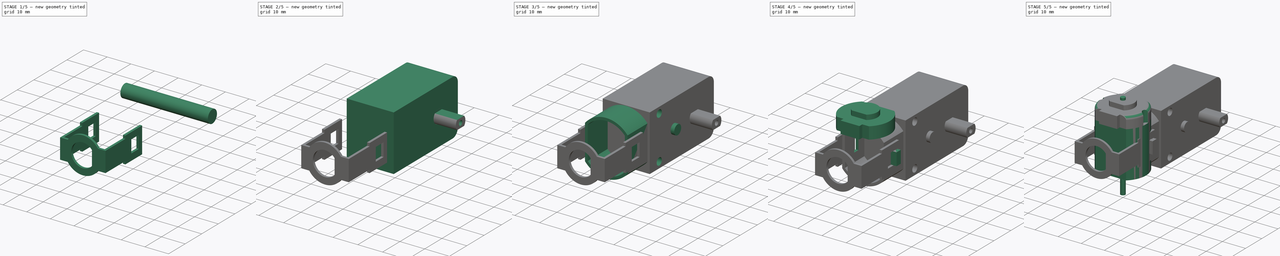
[diagram: build sequence overview — one tinted view per stage of 5, left to right]
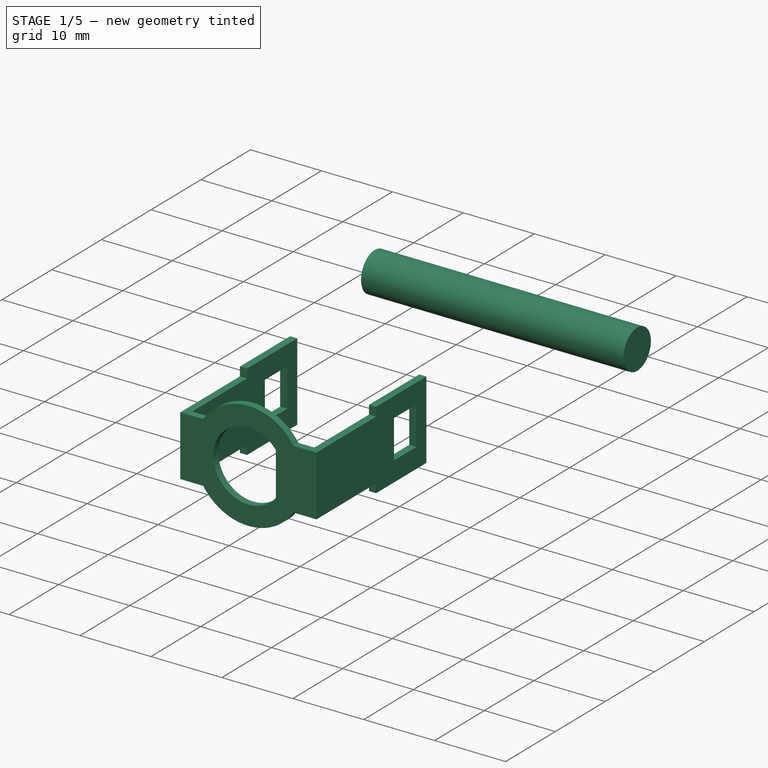
[diagram: stage 1 of 5 — iso view after this stage's code; geometry added in this stage tinted green]
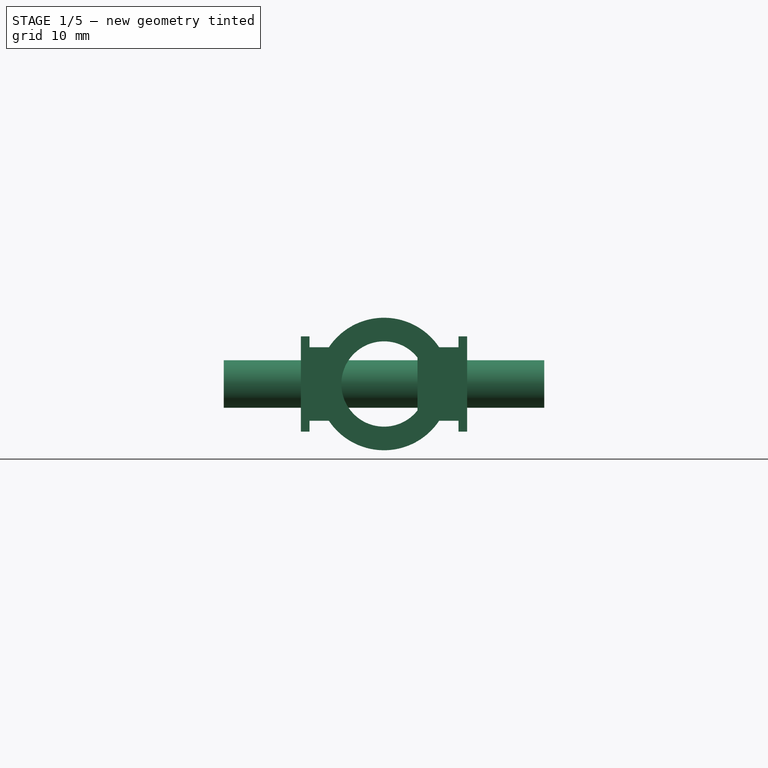
[diagram: stage 1 of 5 — front view after this stage's code; geometry added in this stage tinted green]
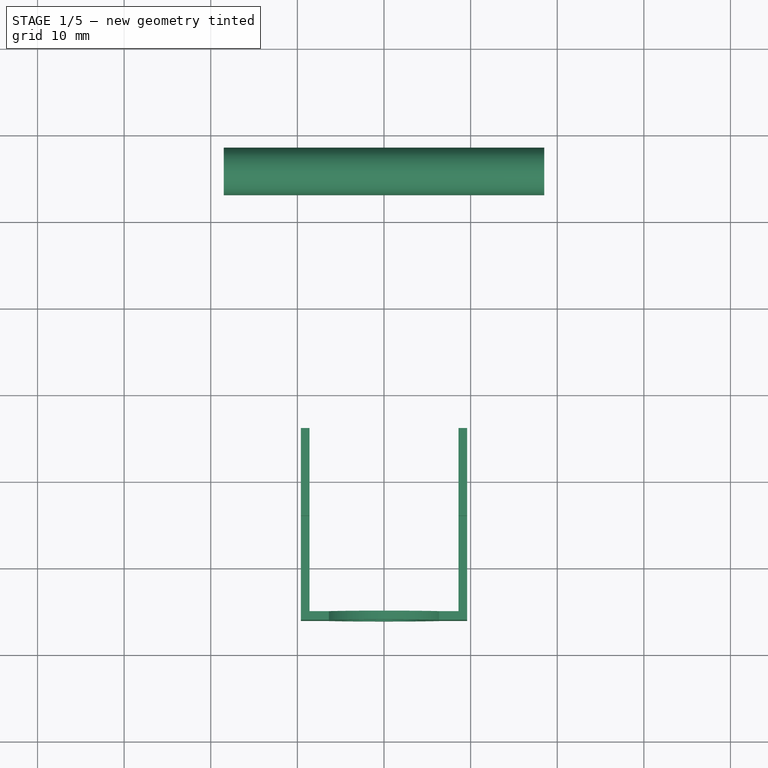
[diagram: stage 1 of 5 — top view after this stage's code; geometry added in this stage tinted green]
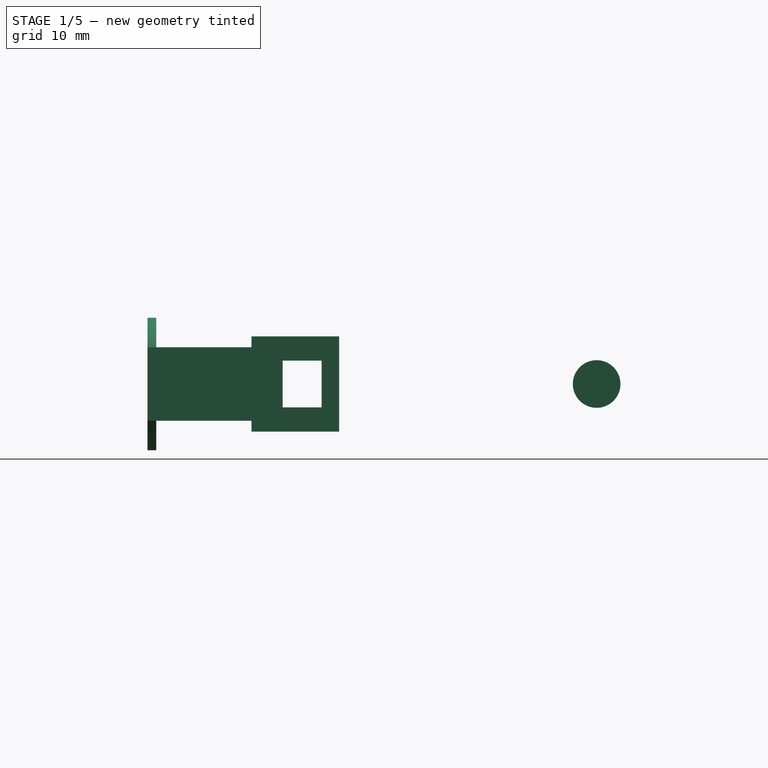
[diagram: stage 1 of 5 — right view after this stage's code; geometry added in this stage tinted green]
FCSTD DOCUMENT  (FreeCAD 0.21R29865 (Git))
Label: Yellow_gearmotor_straight
License: Creative Commons Attribution-NonCommercial-ShareAlike
LicenseURL: http://creativecommons.org/licenses/by-nc-sa/4.0/
objects: Sketcher::SketchObject×18, PartDesign::Pad×11, PartDesign::Pocket×7, PartDesign::Body×6, PartDesign::Fillet×2, App::DocumentObjectGroup×2, PartDesign::Mirrored×2, App::Part×1
note: 66 computed .brp shape members not serialized (recipe doc carries the construction recipe); baked Part::Feature solids carry a one-line shape summary decoded from their .brp

FEATURE [PartDesign::Body] Body003  label="Yellow"
  Group = -> [Sketch005,Pad004,Sketch006,Pad005,Fillet001,Sketch007,Pocket001,Sketch008,Pocket002,Sketch009,Pad006,Sketch010,Pad007,Sketch011,Pocket003,Sketch012,Pad008,Mirrored]
  Origin = -> Origin004
  Tip = -> Mirrored
FEATURE [Sketcher::SketchObject] Sketch013
  FullyConstrained = true
  MapMode = 5
  Placement = pos=(0,0,0) rot=(0.57735,0.57735,0.57735;2.0944rad)
  Support = -> [YZ_Plane005]
  sketch-geometry (1):
    g0: Circle CenterX=35.75 CenterY=0 CenterZ=0 NormalX=0 NormalY=0 NormalZ=1 AngleXU=0 Radius=2.75
  constraints (3):
    c: PointOnObject(g0,g-1)
    c: DistanceX(g0) = 35.75
    c: Diameter(g0) = 5.5
FEATURE [PartDesign::Pad] Pad009
  Direction = (1,-2e-16,3e-16)
  Length = 37
  Length2 = 10
  Midplane = true
  Placement = pos=(0,0,0) rot=(0.57735,0.57735,0.57735;2.0944rad)
  Profile = -> Sketch013
  ReferenceAxis = -> Sketch013 [N_Axis]
  Type = 0
FEATURE [PartDesign::Body] Body004  label="White"
  Group = -> [Sketch013,Pad009,Sketch014,Pocket004,Mirrored001]
  Origin = -> Origin005
  Tip = -> Mirrored001
FEATURE [Sketcher::SketchObject] Sketch015
  FullyConstrained = false
  MapMode = 5
  Support = -> [XY_Plane006]
  sketch-geometry (9):
    g0: LineSegment StartX=-9.6 StartY=-16.1 StartZ=0 EndX=9.6 EndY=-16.1 EndZ=0
    g1: LineSegment StartX=9.6 StartY=-16.1 StartZ=0 EndX=9.6 EndY=6.02093 EndZ=0
    g2: LineSegment StartX=9.6 StartY=6.02093 StartZ=0 EndX=8.6 EndY=6.02093 EndZ=0
    g3: LineSegment StartX=8.6 StartY=6.02093 StartZ=0 EndX=8.6 EndY=-15.1 EndZ=0
    g4: LineSegment StartX=8.6 StartY=-15.1 StartZ=0 EndX=-8.6 EndY=-15.1 EndZ=0
    g5: LineSegment StartX=-8.6 StartY=-15.1 StartZ=0 EndX=-8.6 EndY=6.02093 EndZ=0
    g6: LineSegment StartX=-8.6 StartY=6.02093 StartZ=0 EndX=-9.6 EndY=6.02093 EndZ=0
    g7: LineSegment StartX=-9.6 StartY=6.02093 StartZ=0 EndX=-9.6 EndY=-16.1 EndZ=0
    g8: LineSegment StartX=8.6 StartY=-15.1 StartZ=0 EndX=8.6 EndY=-16.1 EndZ=0
  constraints (25):
    c: Coincident(g0,g1)
    c: Vertical(g1)
    c: Coincident(g1,g2)
    c: Coincident(g2,g3)
    c: Vertical(g3)
    c: Coincident(g3,g4)
    c: Horizontal(g4)
    c: Coincident(g4,g5)
    c: Vertical(g5)
    c: Coincident(g5,g6)
    c: Coincident(g6,g7)
    c: Coincident(g7,g0)
    c: Vertical(g7)
    c: Horizontal(g2)
    c: Horizontal(g6)
    c: Equal(g6,g2)
    c: Symmetric(g0,g0,g-2)
    c: DistanceX(g6,g6) = 1
    c: DistanceX(g2) = 8.6
    c: DistanceY(g3) = -15.1
    c: Coincident(g8,g3)
    c: PointOnObject(g8,g0)
    c: Vertical(g8)
    c: Equal(g8,g2)
    c: Horizontal(g1,g6)
FEATURE [PartDesign::Pad] Pad010
  Direction = (0,0,1)
  Length = 15.3
  Length2 = 10
  Midplane = true
  Profile = -> Sketch015
  ReferenceAxis = -> Sketch015 [N_Axis]
  Type = 0
FEATURE [Sketcher::SketchObject] Sketch016
  ExternalGeometry = -> [Pad010]
  FullyConstrained = false
  MapMode = 5
  Placement = pos=(3e-15,-16.1,0) rot=(1,0,0;1.5708rad)
  Support = -> [Pad010]
  sketch-geometry (15):
    g0: ArcOfCircle CenterX=0 CenterY=0 CenterZ=0 NormalX=0 NormalY=0 NormalZ=1 AngleXU=0 Radius=4.925 StartAngle=0.665186 EndAngle=5.618
    g1: LineSegment StartX=3.875 StartY=-3.03974 StartZ=0 EndX=3.875 EndY=3.03974 EndZ=0
    g2: GeomPoint X=-4.925 Y=0 Z=0
    g3: ArcOfCircle CenterX=0 CenterY=0 CenterZ=0 NormalX=0 NormalY=0 NormalZ=1 AngleXU=0 Radius=7.65 StartAngle=3.73062 EndAngle=5.69415
    g4: LineSegment StartX=6.36082 StartY=-4.25 StartZ=0 EndX=9.6 EndY=-4.25 EndZ=0
    g5: LineSegment StartX=9.6 StartY=-4.25 StartZ=0 EndX=9.6 EndY=4.25 EndZ=0
    g6: LineSegment StartX=9.6 StartY=4.25 StartZ=0 EndX=6.36082 EndY=4.25 EndZ=0
    g7: LineSegment StartX=-6.36082 StartY=4.25 StartZ=0 EndX=-9.6 EndY=4.25 EndZ=0
    g8: LineSegment StartX=-9.6 StartY=4.25 StartZ=0 EndX=-9.6 EndY=-4.25 EndZ=0
    g9: LineSegment StartX=-9.6 StartY=-4.25 StartZ=0 EndX=-6.36082 EndY=-4.25 EndZ=0
    g10: ArcOfCircle CenterX=0 CenterY=0 CenterZ=0 NormalX=0 NormalY=0 NormalZ=1 AngleXU=0 Radius=7.65 StartAngle=0.589031 EndAngle=2.55256
    g11: LineSegment StartX=-11.0569 StartY=9.10145 StartZ=0 EndX=11.1499 EndY=9.10145 EndZ=0
    g12: LineSegment StartX=11.1499 StartY=9.10145 StartZ=0 EndX=11.1499 EndY=-8.85112 EndZ=0
    g13: LineSegment StartX=11.1499 StartY=-8.85112 StartZ=0 EndX=-11.0569 EndY=-8.85112 EndZ=0
    g14: LineSegment StartX=-11.0569 StartY=-8.85112 StartZ=0 EndX=-11.0569 EndY=9.10145 EndZ=0
  constraints (39):
    c: Coincident(g0,g-1)
    c: Diameter(g0) = 9.85
    c: Vertical(g1)
    c: PointOnObject(g2,g0)
    c: PointOnObject(g2,g-1)
    c: DistanceX(g2,g1) = 8.8
    c: Coincident(g0,g1)
    c: Coincident(g0,g1)
    c: Coincident(g3,g0)
    c: Horizontal(g4)
    c: Coincident(g4,g5)
    c: Coincident(g5,g6)
    c: Horizontal(g6)
    c: Symmetric(g4,g5,g-1)
    c: DistanceY(g4,g5) = 8.5
    c: Horizontal(g7)
    c: Coincident(g7,g8)
    c: Coincident(g8,g9)
    c: Horizontal(g9)
    c: Horizontal(g7,g5)
    c: Horizontal(g4,g9)
    c: Coincident(g10,g7)
    c: Coincident(g3,g9)
    c: Equal(g3,g10)
    c: Coincident(g3,g4)
    c: Coincident(g10,g6)
    c: Coincident(g3,g10)
    c: PointOnObject(g7,g-3)
    c: Vertical(g8)
    c: PointOnObject(g5,g-4)
    c: Radius(g10) = 7.65
    c: Coincident(g11,g12)
    c: Coincident(g12,g13)
    c: Coincident(g13,g14)
    c: Coincident(g14,g11)
    c: Horizontal(g11)
    c: Horizontal(g13)
    c: Vertical(g12)
    c: Vertical(g14)
FEATURE [PartDesign::Pocket] Pocket005
  BaseFeature = -> Pad010
  Direction = (-2e-16,1,-2e-16)
  Length = 12
  Length2 = 5
  Profile = -> Sketch016
  ReferenceAxis = -> Sketch016 [N_Axis]
  Type = 0
FEATURE [Sketcher::SketchObject] Sketch017
  ExternalGeometry = -> [Pocket005]
  FullyConstrained = true
  MapMode = 5
  Placement = pos=(9.6,0,0) rot=(0.57735,0.57735,0.57735;2.0944rad)
  Support = -> [Pocket005]
  sketch-geometry (13):
    g0: LineSegment StartX=-0.5 StartY=-2.7 StartZ=0 EndX=-0.5 EndY=2.7 EndZ=0
    g1: LineSegment StartX=-0.5 StartY=2.7 StartZ=0 EndX=4 EndY=2.7 EndZ=0
    g2: LineSegment StartX=4 StartY=2.7 StartZ=0 EndX=4 EndY=-2.7 EndZ=0
    g3: LineSegment StartX=4 StartY=-2.7 StartZ=0 EndX=-0.5 EndY=-2.7 EndZ=0
    g4: GeomPoint X=1.75 Y=0 Z=0
    g5: LineSegment StartX=6.02093 StartY=-7.65 StartZ=0 EndX=-4.1 EndY=-7.65 EndZ=0
    g6: LineSegment StartX=-4.1 StartY=-7.65 StartZ=0 EndX=-4.1 EndY=-5.5 EndZ=0
    g7: LineSegment StartX=-4.1 StartY=-5.5 StartZ=0 EndX=6.02093 EndY=-5.5 EndZ=0
    g8: LineSegment StartX=6.02093 StartY=-5.5 StartZ=0 EndX=6.02093 EndY=-7.65 EndZ=0
    g9: LineSegment StartX=-4.1 StartY=7.65 StartZ=0 EndX=6.02093 EndY=7.65 EndZ=0
    g10: LineSegment StartX=6.02093 StartY=7.65 StartZ=0 EndX=6.02093 EndY=5.5 EndZ=0
    g11: LineSegment StartX=6.02093 StartY=5.5 StartZ=0 EndX=-4.1 EndY=5.5 EndZ=0
    g12: LineSegment StartX=-4.1 StartY=5.5 StartZ=0 EndX=-4.1 EndY=7.65 EndZ=0
  constraints (32):
    c: Coincident(g0,g1)
    c: Coincident(g1,g2)
    c: Coincident(g2,g3)
    c: Coincident(g3,g0)
    c: Horizontal(g1)
    c: Horizontal(g3)
    c: Vertical(g0)
    c: Vertical(g2)
    c: Symmetric(g1,g0,g4)
    c: PointOnObject(g4,g-1)
    c: Coincident(g5,g6)
    c: Coincident(g6,g7)
    c: Coincident(g7,g8)
    c: Coincident(g8,g5)
    c: Horizontal(g7)
    c: Vertical(g6)
    c: Vertical(g8)
    c: Coincident(g5,g-4)
    c: Coincident(g9,g10)
    c: Coincident(g10,g11)
    c: Coincident(g11,g12)
    c: Coincident(g12,g9)
    c: Horizontal(g11)
    c: Vertical(g12)
    c: Coincident(g9,g-3)
    c: Coincident(g9,g-3)
    c: Coincident(g5,g-4)
    c: DistanceY(g7,g10) = 11
    c: Symmetric(g10,g7,g-1)
    c: DistanceX(g1,g1) = 4.5
    c: DistanceY(g0,g0) = 5.4
    c: DistanceX(g2) = 4
FEATURE [PartDesign::Pocket] Pocket006
  BaseFeature = -> Pocket005
  Direction = (-1,0,0)
  Length = 5
  Length2 = 5
  Profile = -> Sketch017
  ReferenceAxis = -> Sketch017 [N_Axis]
  Type = 1
FEATURE [PartDesign::Body] Body005  label="Transparent"
  Group = -> [Sketch015,Pad010,Sketch016,Pocket005,Sketch017,Pocket006]
  Origin = -> Origin006
  Tip = -> Pocket006
FEATURE [App::DocumentObjectGroup] Group001  label="Box"
  Group = -> [Body003,Body004,Body005]
FEATURE [App::Part] Part  label="Yellow gearmotor straight"
  Group = -> [Body,Body001,Group,Body002,Body003,Body004,Body005,Group001]
  Origin = -> Origin
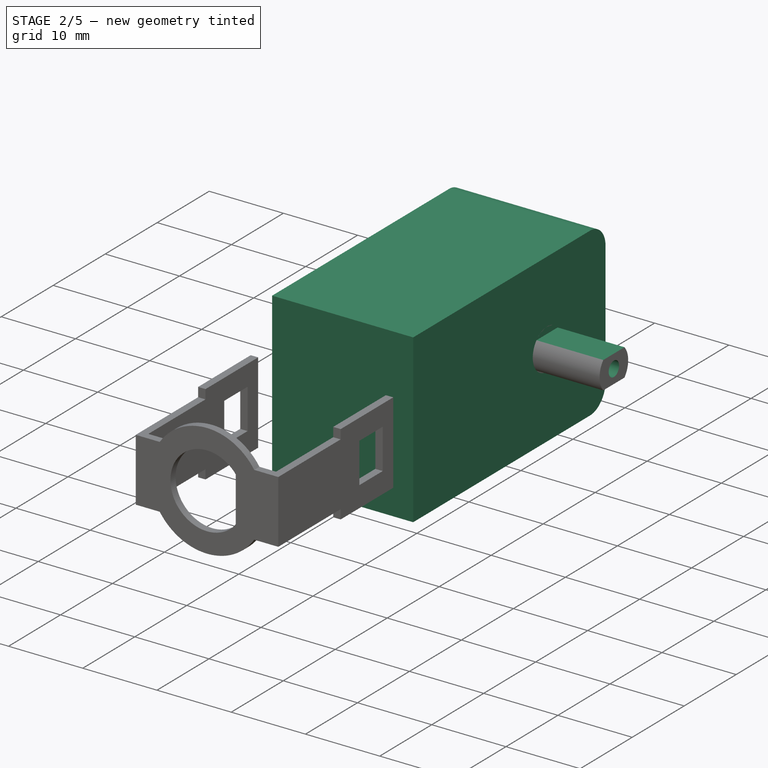
[diagram: stage 2 of 5 — iso view after this stage's code; geometry added in this stage tinted green]
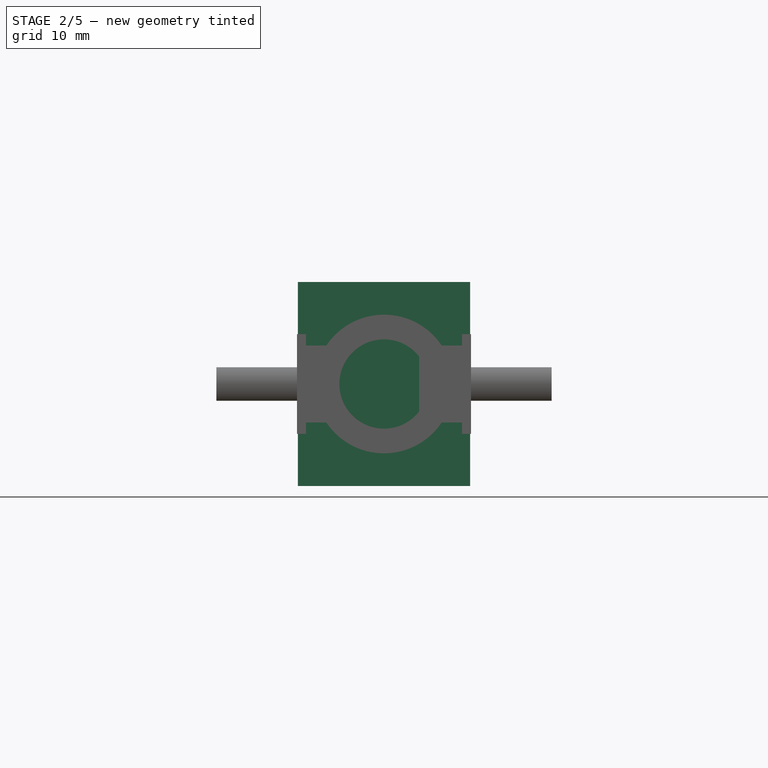
[diagram: stage 2 of 5 — front view after this stage's code; geometry added in this stage tinted green]
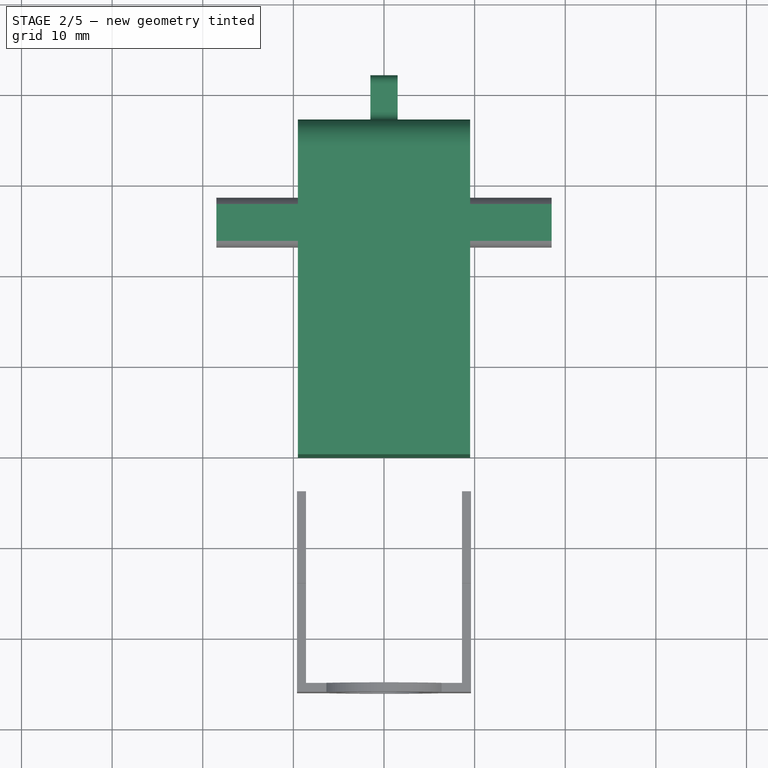
[diagram: stage 2 of 5 — top view after this stage's code; geometry added in this stage tinted green]
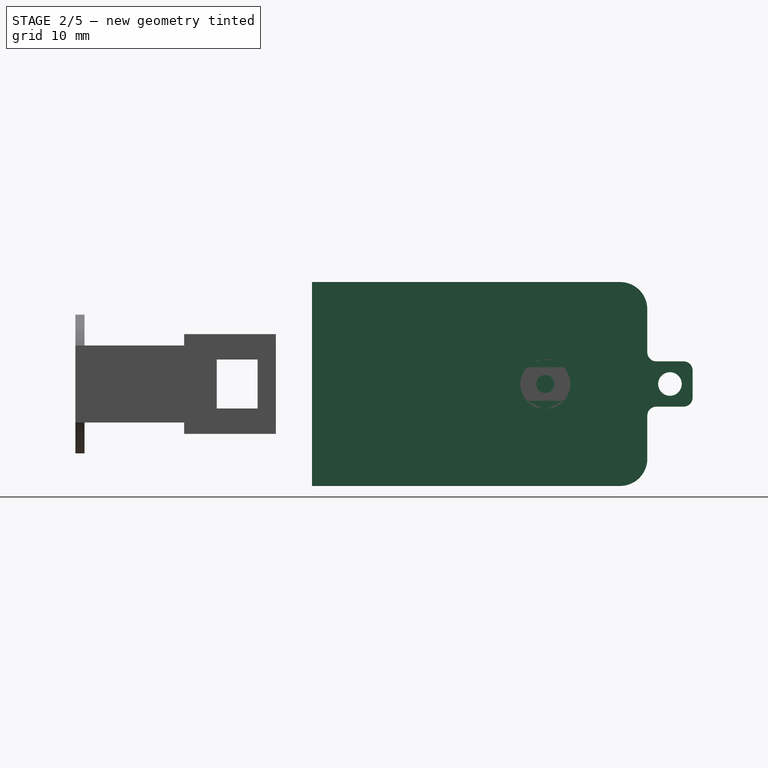
[diagram: stage 2 of 5 — right view after this stage's code; geometry added in this stage tinted green]
FEATURE [PartDesign::Body] Body001  label="Plastic"
  Group = -> [Sketch001,Pad001,Sketch003,Pad003,Sketch004,Fillet,Pocket]
  Origin = -> Origin002
  Placement = pos=(0,0,0) rot=(0.57735,-0.57735,0.57735;2.0944rad)
  Tip = -> Fillet
FEATURE [App::DocumentObjectGroup] Group  label="Motor"
  Group = -> [Body,Body001,Body002]
FEATURE [Sketcher::SketchObject] Sketch005
  FullyConstrained = true
  MapMode = 5
  Placement = pos=(0,0,0) rot=(0.57735,0.57735,0.57735;2.0944rad)
  Support = -> [YZ_Plane004]
  sketch-geometry (9):
    g0: LineSegment StartX=10 StartY=-11.25 StartZ=0 EndX=10 EndY=11.25 EndZ=0
    g1: LineSegment StartX=10 StartY=11.25 StartZ=0 EndX=44 EndY=11.25 EndZ=0
    g2: LineSegment StartX=47 StartY=8.25 StartZ=0 EndX=47 EndY=-8.25 EndZ=0
    g3: LineSegment StartX=44 StartY=-11.25 StartZ=0 EndX=10 EndY=-11.25 EndZ=0
    g4: GeomPoint X=28.5 Y=0 Z=0
    g5: ArcOfCircle CenterX=44 CenterY=8.25 CenterZ=0 NormalX=0 NormalY=0 NormalZ=1 AngleXU=0 Radius=3 StartAngle=0 EndAngle=1.5708
    g6: GeomPoint X=47 Y=11.25 Z=0
    g7: ArcOfCircle CenterX=44 CenterY=-8.25 CenterZ=0 NormalX=0 NormalY=0 NormalZ=1 AngleXU=0 Radius=3 StartAngle=4.71239 EndAngle=6.28319
    g8: GeomPoint X=47 Y=-11.25 Z=0
  constraints (21):
    c: Coincident(g0,g1)
    c: Coincident(g3,g0)
    c: Horizontal(g1)
    c: Horizontal(g3)
    c: Vertical(g0)
    c: Vertical(g2)
    c: Symmetric(g6,g0,g4)
    c: PointOnObject(g4,g-1)
    c: DistanceX(g1,g6) = 37
    c: DistanceY(g8,g6) = 22.5
    c: PointOnObject(g6,g1)
    c: PointOnObject(g6,g2)
    c: Tangent(g1,g5) = 1.5708
    c: Tangent(g2,g5) = 1.5708
    c: PointOnObject(g8,g3)
    c: PointOnObject(g8,g2)
    c: Tangent(g3,g7) = 1.5708
    c: Tangent(g2,g7) = 1.5708
    c: Equal(g5,g7)
    c: Radius(g5) = 3
    c: DistanceX(g0) = 10
FEATURE [PartDesign::Pad] Pad004
  Direction = (1,-2e-16,3e-16)
  Length = 19
  Length2 = 10
  Midplane = true
  Placement = pos=(0,0,0) rot=(0.57735,0.57735,0.57735;2.0944rad)
  Profile = -> Sketch005
  ReferenceAxis = -> Sketch005 [N_Axis]
  Type = 0
FEATURE [Sketcher::SketchObject] Sketch006
  ExternalGeometry = -> [Pad004]
  FullyConstrained = true
  MapMode = 5
  Placement = pos=(0,0,0) rot=(0.57735,0.57735,0.57735;2.0944rad)
  Support = -> [YZ_Plane004]
  sketch-geometry (5):
    g0: LineSegment StartX=47 StartY=2.5 StartZ=0 EndX=52 EndY=2.5 EndZ=0
    g1: LineSegment StartX=52 StartY=2.5 StartZ=0 EndX=52 EndY=-2.5 EndZ=0
    g2: LineSegment StartX=52 StartY=-2.5 StartZ=0 EndX=47 EndY=-2.5 EndZ=0
    g3: LineSegment StartX=47 StartY=-2.5 StartZ=0 EndX=47 EndY=2.5 EndZ=0
    g4: Circle CenterX=49.5 CenterY=1.6e-15 CenterZ=0 NormalX=0 NormalY=0 NormalZ=1 AngleXU=0 Radius=1.3
  constraints (13):
    c: Coincident(g0,g1)
    c: Coincident(g1,g2)
    c: Coincident(g2,g3)
    c: Coincident(g3,g0)
    c: Horizontal(g0)
    c: Horizontal(g2)
    c: Vertical(g3)
    c: PointOnObject(g0,g-3)
    c: Symmetric(g1,g0,g-1)
    c: Equal(g1,g0)
    c: DistanceX(g0,g0) = 5
    c: Diameter(g4) = 2.6
    c: Symmetric(g1,g0,g4)
FEATURE [PartDesign::Pad] Pad005
  BaseFeature = -> Pad004
  Direction = (1,-2e-16,3e-16)
  Length = 3
  Length2 = 10
  Midplane = true
  Placement = pos=(0,0,0) rot=(0.57735,0.57735,0.57735;2.0944rad)
  Profile = -> Sketch006
  ReferenceAxis = -> Sketch006 [N_Axis]
  Type = 0
FEATURE [PartDesign::Fillet] Fillet001
  Base = -> Pad005 [Edge23,Edge29,Edge18,Edge20]
  BaseFeature = -> Pad005
  Placement = pos=(0,0,0) rot=(0.57735,0.57735,0.57735;2.0944rad)
  Radius = 1
  SupportTransform = false
  UseAllEdges = false
FEATURE [Sketcher::SketchObject] Sketch014
  ExternalGeometry = -> [Pad009]
  FullyConstrained = true
  MapMode = 5
  Placement = pos=(18.5,-8.2e-15,6.2e-15) rot=(0.57735,0.57735,0.57735;2.0944rad)
  Support = -> [Pad009]
  sketch-geometry (12):
    g0: Circle CenterX=35.75 CenterY=-1.88e-14 CenterZ=0 NormalX=0 NormalY=0 NormalZ=1 AngleXU=0 Radius=1
    g1: LineSegment StartX=35.75 StartY=-2.35 StartZ=0 EndX=35.75 EndY=2.35 EndZ=0
    g2: LineSegment StartX=33.25 StartY=2.85 StartZ=0 EndX=33.25 EndY=1.85 EndZ=0
    g3: LineSegment StartX=33.25 StartY=1.85 StartZ=0 EndX=38.25 EndY=1.85 EndZ=0
    g4: LineSegment StartX=38.25 StartY=1.85 StartZ=0 EndX=38.25 EndY=2.85 EndZ=0
    g5: LineSegment StartX=38.25 StartY=2.85 StartZ=0 EndX=33.25 EndY=2.85 EndZ=0
    g6: GeomPoint X=35.75 Y=2.35 Z=0
    g7: LineSegment StartX=33.25 StartY=-2.85 StartZ=0 EndX=33.25 EndY=-1.85 EndZ=0
    g8: LineSegment StartX=33.25 StartY=-1.85 StartZ=0 EndX=38.25 EndY=-1.85 EndZ=0
    g9: LineSegment StartX=38.25 StartY=-1.85 StartZ=0 EndX=38.25 EndY=-2.85 EndZ=0
    g10: LineSegment StartX=38.25 StartY=-2.85 StartZ=0 EndX=33.25 EndY=-2.85 EndZ=0
    g11: GeomPoint X=35.75 Y=-2.35 Z=0
  constraints (31):
    c: Coincident(g0,g-3)
    c: Diameter(g0) = 2
    c: Vertical(g1)
    c: PointOnObject(g0,g1)
    c: Coincident(g2,g3)
    c: Coincident(g3,g4)
    c: Coincident(g4,g5)
    c: Coincident(g5,g2)
    c: Horizontal(g3)
    c: Horizontal(g5)
    c: Vertical(g2)
    c: Vertical(g4)
    c: Symmetric(g3,g2,g6)
    c: Coincident(g6,g1)
    c: Coincident(g7,g8)
    c: Coincident(g8,g9)
    c: Coincident(g9,g10)
    c: Coincident(g10,g7)
    c: Horizontal(g8)
    c: Horizontal(g10)
    c: Vertical(g7)
    c: Vertical(g9)
    c: Symmetric(g8,g7,g11)
    c: Coincident(g11,g1)
    c: Equal(g9,g4)
    c: Equal(g5,g10)
    c: DistanceY(g0,g3) = 1.85
    c: DistanceY(g8,g0) = 1.85
    c: DistanceY(g7,g2) = 3.7
    c: DistanceY(g4,g4) = 1
    c: DistanceX(g5,g5) = 5
FEATURE [PartDesign::Pocket] Pocket004
  BaseFeature = -> Pad009
  Direction = (-1,4e-16,-4e-16)
  Length = 9
  Length2 = 5
  Placement = pos=(0,0,0) rot=(0.57735,0.57735,0.57735;2.0944rad)
  Profile = -> Sketch014
  ReferenceAxis = -> Sketch014 [N_Axis]
  Type = 0
FEATURE [PartDesign::Mirrored] Mirrored001
  BaseFeature = -> Pocket004
  MirrorPlane = -> YZ_Plane005
  Originals = -> [Pocket004]
  Placement = pos=(0,0,0) rot=(0.57735,0.57735,0.57735;2.0944rad)
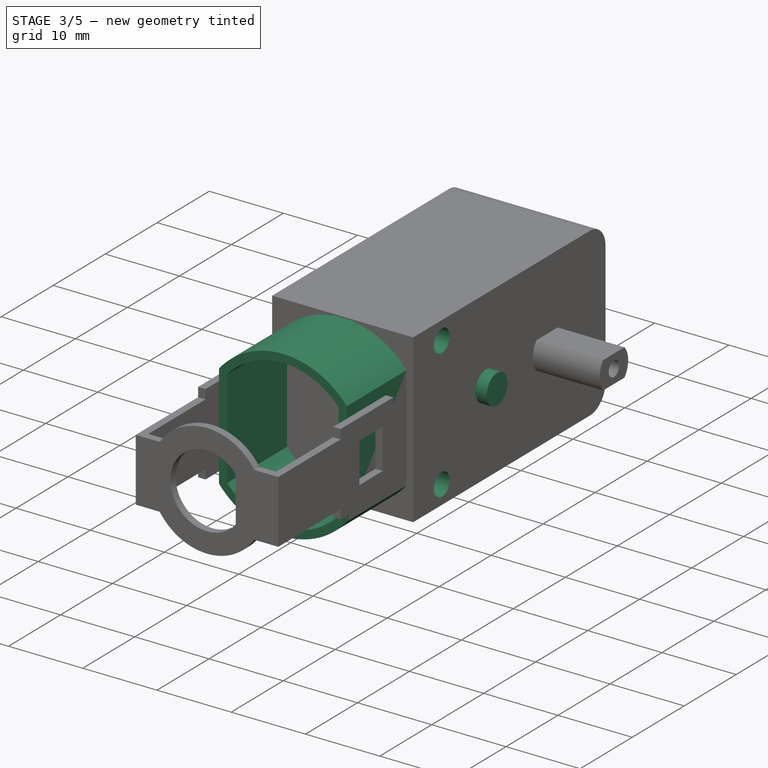
[diagram: stage 3 of 5 — iso view after this stage's code; geometry added in this stage tinted green]
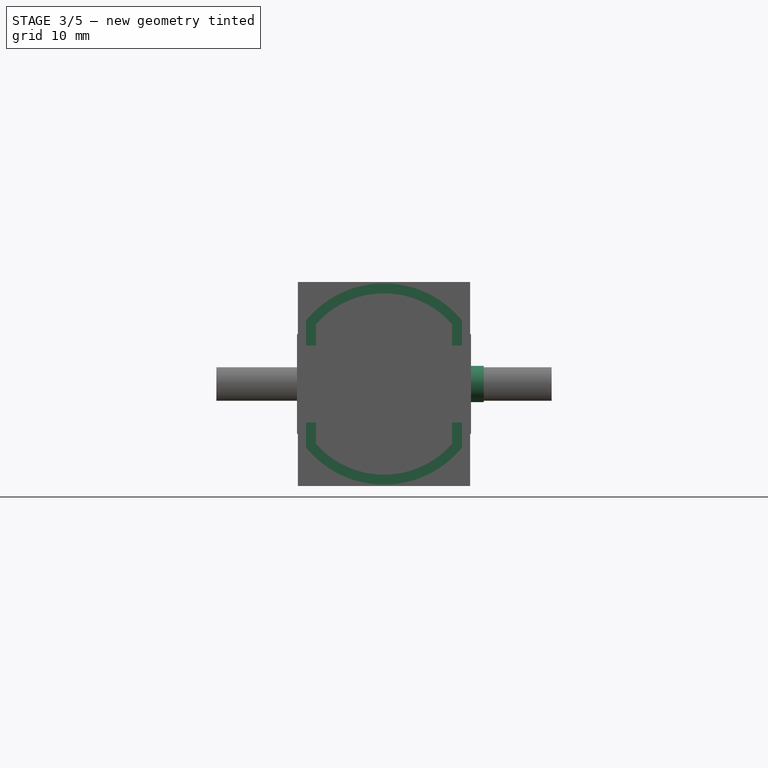
[diagram: stage 3 of 5 — front view after this stage's code; geometry added in this stage tinted green]
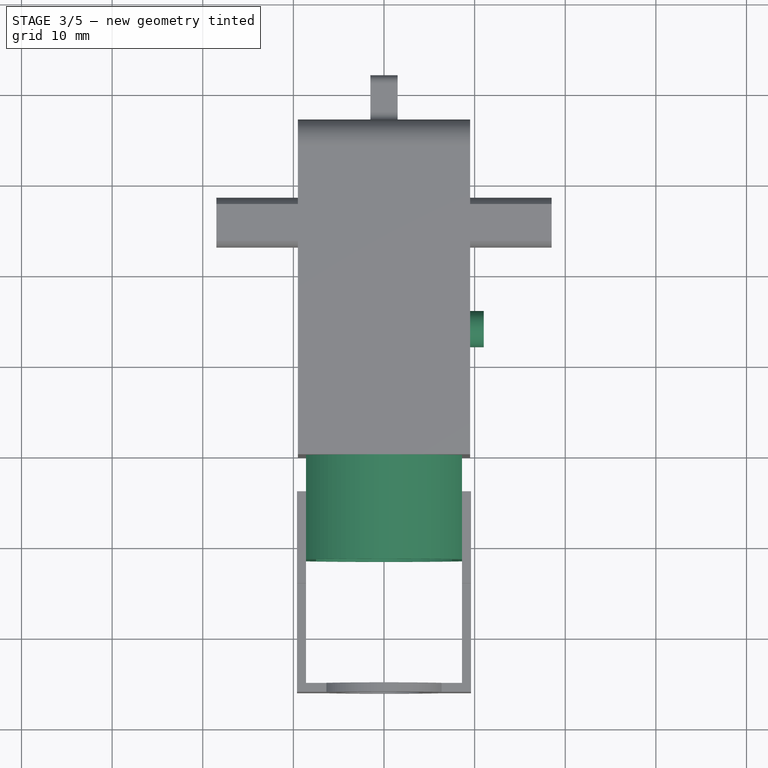
[diagram: stage 3 of 5 — top view after this stage's code; geometry added in this stage tinted green]
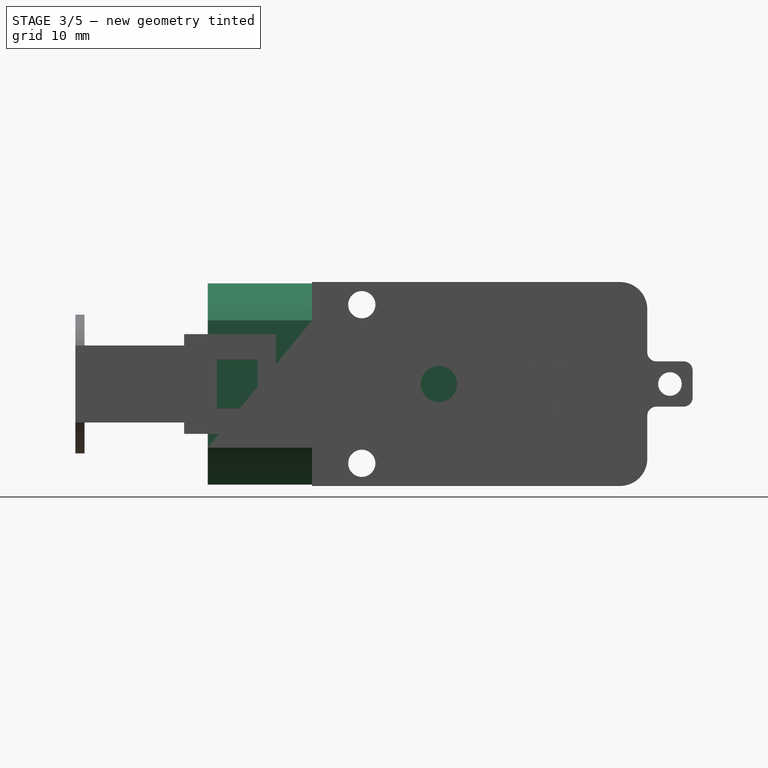
[diagram: stage 3 of 5 — right view after this stage's code; geometry added in this stage tinted green]
FEATURE [Sketcher::SketchObject] Sketch007
  ExternalGeometry = -> [Fillet001]
  FullyConstrained = true
  MapMode = 5
  Placement = pos=(0,0,0) rot=(0.57735,0.57735,0.57735;2.0944rad)
  Support = -> [YZ_Plane004]
  sketch-geometry (1):
    g0: Circle CenterX=35.75 CenterY=0 CenterZ=0 NormalX=0 NormalY=0 NormalZ=1 AngleXU=0 Radius=2.75
  constraints (4):
    c: PointOnObject(g0,g-1)
    c: DistanceX(g0,g-3) = 11.25
    c: Diameter(g0) = 5.5
    c: DistanceX(g0) = 35.75
FEATURE [PartDesign::Pocket] Pocket001
  BaseFeature = -> Fillet001
  Direction = (-1,2e-16,-3e-16)
  Length = 5
  Length2 = 5
  Midplane = true
  Placement = pos=(0,0,0) rot=(0.57735,0.57735,0.57735;2.0944rad)
  Profile = -> Sketch007
  ReferenceAxis = -> Sketch007 [N_Axis]
  Type = 1
FEATURE [Sketcher::SketchObject] Sketch008
  ExternalGeometry = -> [Pocket001]
  FullyConstrained = true
  MapMode = 5
  Placement = pos=(0,0,0) rot=(0.57735,0.57735,0.57735;2.0944rad)
  Support = -> [YZ_Plane004]
  sketch-geometry (2):
    g0: Circle CenterX=15.5 CenterY=8.75 CenterZ=0 NormalX=0 NormalY=0 NormalZ=1 AngleXU=0 Radius=1.5
    g1: Circle CenterX=15.5 CenterY=-8.75 CenterZ=0 NormalX=0 NormalY=0 NormalZ=1 AngleXU=0 Radius=1.5
  constraints (5):
    c: Equal(g0,g1)
    c: Symmetric(g0,g1,g-1)
    c: Diameter(g0) = 3
    c: DistanceY(g0,g-3) = 2.5
    c: DistanceX(g-3,g0) = 5.5
FEATURE [PartDesign::Pocket] Pocket002
  BaseFeature = -> Pocket001
  Direction = (-1,2e-16,-3e-16)
  Length = 5
  Length2 = 5
  Midplane = true
  Placement = pos=(0,0,0) rot=(0.57735,0.57735,0.57735;2.0944rad)
  Profile = -> Sketch008
  ReferenceAxis = -> Sketch008 [N_Axis]
  Type = 1
FEATURE [Sketcher::SketchObject] Sketch009
  ExternalGeometry = -> [Pocket002]
  FullyConstrained = true
  MapMode = 5
  Placement = pos=(0,0,0) rot=(0.57735,0.57735,0.57735;2.0944rad)
  Support = -> [YZ_Plane004]
  sketch-geometry (1):
    g0: Circle CenterX=24 CenterY=0 CenterZ=0 NormalX=0 NormalY=0 NormalZ=1 AngleXU=0 Radius=2
  constraints (3):
    c: PointOnObject(g0,g-1)
    c: DistanceX(g-3,g0) = 14
    c: Diameter(g0) = 4
FEATURE [PartDesign::Pad] Pad006
  BaseFeature = -> Pocket002
  Direction = (1,-2e-16,3e-16)
  Length = 11
  Length2 = 10
  Placement = pos=(0,0,0) rot=(0.57735,0.57735,0.57735;2.0944rad)
  Profile = -> Sketch009
  ReferenceAxis = -> Sketch009 [N_Axis]
  Type = 0
FEATURE [Sketcher::SketchObject] Sketch010
  FullyConstrained = true
  MapMode = 5
  Placement = pos=(4.4e-15,10,-1.67e-14) rot=(0.57735,0.57735,-0.57735;2.0944rad)
  Support = -> [Pad006]
  sketch-geometry (8):
    g0: ArcOfCircle CenterX=0 CenterY=0 CenterZ=0 NormalX=0 NormalY=0 NormalZ=1 AngleXU=0 Radius=11.1 StartAngle=2.25523 EndAngle=4.02795
    g1: ArcOfCircle CenterX=0 CenterY=0 CenterZ=0 NormalX=0 NormalY=0 NormalZ=1 AngleXU=0 Radius=10 StartAngle=2.29353 EndAngle=3.98965
    g2: LineSegment StartX=-6.61438 StartY=7.5 StartZ=0 EndX=6.61438 EndY=7.5 EndZ=0
    g3: LineSegment StartX=7.01783 StartY=8.6 StartZ=0 EndX=-7.01783 EndY=8.6 EndZ=0
    g4: LineSegment StartX=-6.61438 StartY=-7.5 StartZ=0 EndX=6.61438 EndY=-7.5 EndZ=0
    g5: LineSegment StartX=-7.01783 StartY=-8.6 StartZ=0 EndX=7.01783 EndY=-8.6 EndZ=0
    g6: ArcOfCircle CenterX=0 CenterY=0 CenterZ=0 NormalX=0 NormalY=0 NormalZ=1 AngleXU=0 Radius=10 StartAngle=5.43512 EndAngle=7.13125
    g7: ArcOfCircle CenterX=0 CenterY=0 CenterZ=0 NormalX=0 NormalY=0 NormalZ=1 AngleXU=0 Radius=11.1 StartAngle=5.39683 EndAngle=7.16954
  constraints (24):
    c: Coincident(g0,g-1)
    c: Coincident(g1,g0)
    c: Horizontal(g2)
    c: Horizontal(g3)
    c: Horizontal(g4)
    c: Horizontal(g5)
    c: Equal(g4,g2)
    c: Equal(g3,g5)
    c: Coincident(g7,g3)
    c: Coincident(g0,g3)
    c: Coincident(g6,g2)
    c: Coincident(g1,g2)
    c: Equal(g1,g6)
    c: Coincident(g1,g4)
    c: Coincident(g6,g4)
    c: Coincident(g1,g6)
    c: Equal(g0,g7)
    c: Coincident(g0,g5)
    c: Coincident(g7,g5)
    c: Coincident(g0,g7)
    c: DistanceY(g4,g2) = 15
    c: DistanceY(g5,g3) = 17.2
    c: Radius(g1) = 10
    c: Radius(g0) = 11.1
FEATURE [PartDesign::Pad] Pad007
  BaseFeature = -> Pad006
  Direction = (-4e-16,-1,1.6e-15)
  Length = 11.5
  Length2 = 10
  Placement = pos=(0,0,0) rot=(0.57735,0.57735,0.57735;2.0944rad)
  Profile = -> Sketch010
  ReferenceAxis = -> Sketch010 [N_Axis]
  Type = 0
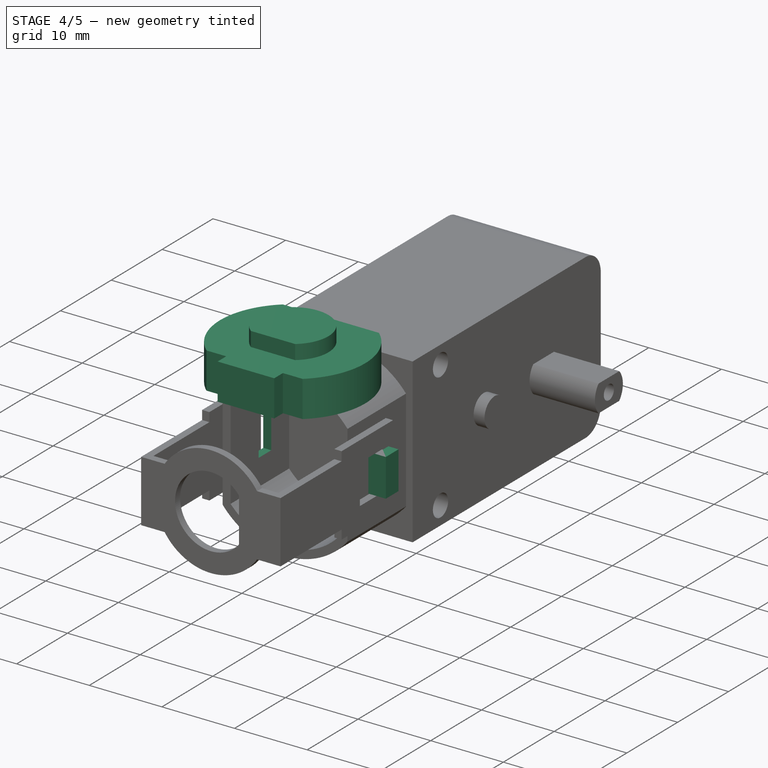
[diagram: stage 4 of 5 — iso view after this stage's code; geometry added in this stage tinted green]
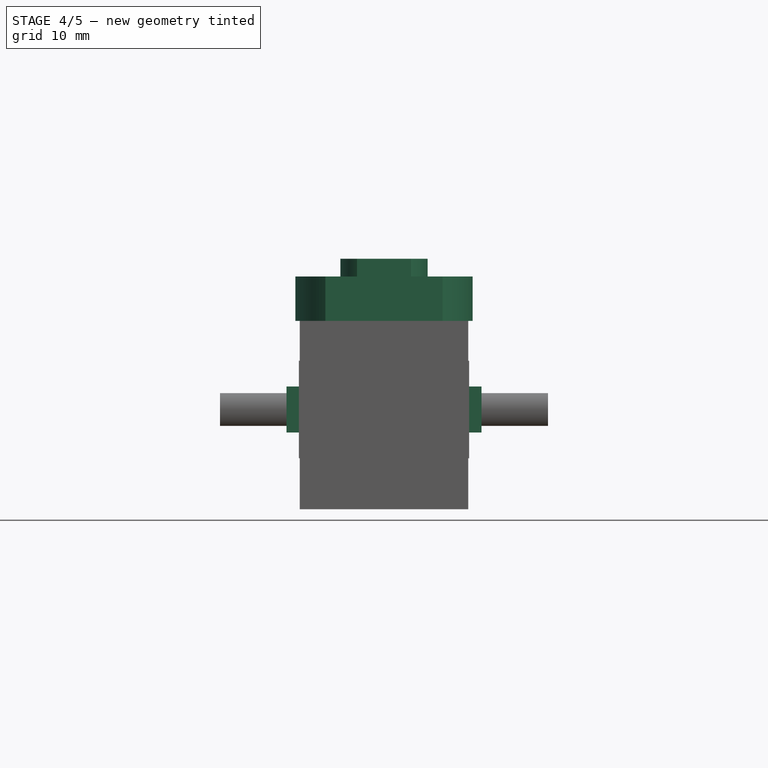
[diagram: stage 4 of 5 — front view after this stage's code; geometry added in this stage tinted green]
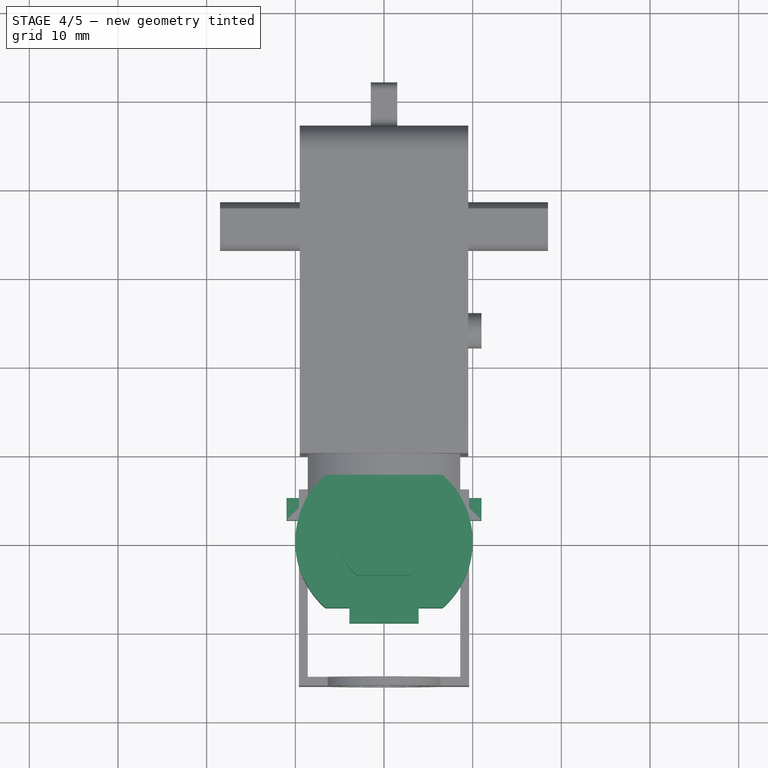
[diagram: stage 4 of 5 — top view after this stage's code; geometry added in this stage tinted green]
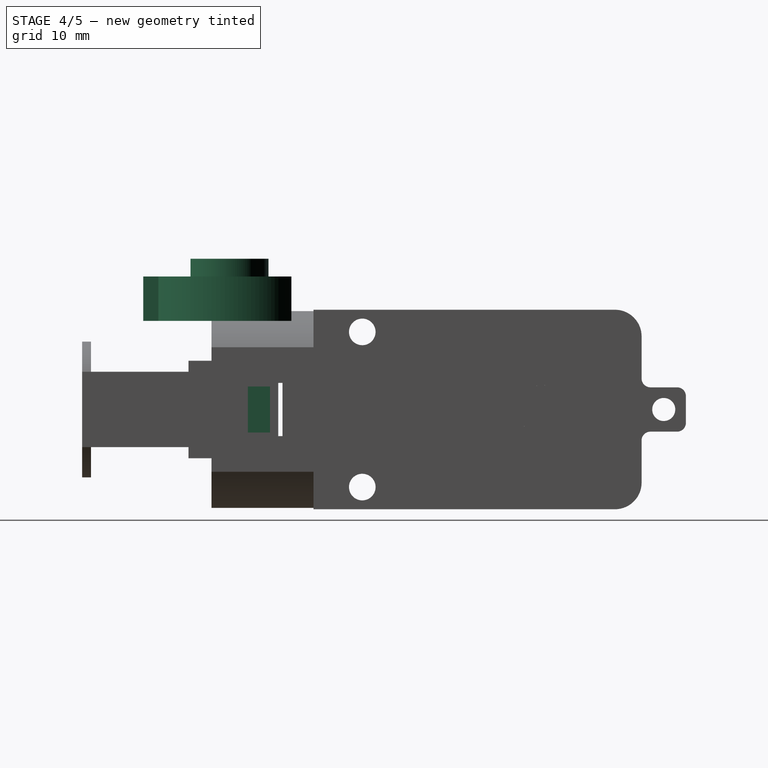
[diagram: stage 4 of 5 — right view after this stage's code; geometry added in this stage tinted green]
FEATURE [PartDesign::Body] Body  label="Metal"
  Group = -> [Sketch,Pad]
  Origin = -> Origin001
  Placement = pos=(0,0,0) rot=(0.57735,-0.57735,0.57735;2.0944rad)
  Tip = -> Pad
FEATURE [Sketcher::SketchObject] Sketch001
  AttachmentOffset = pos=(0,0,10) rot=(0,0,1;0rad)
  FullyConstrained = true
  MapMode = 5
  Placement = pos=(0,0,10) rot=(0,0,1;0rad)
  Support = -> [XY_Plane002]
  sketch-geometry (8):
    g0: ArcOfCircle CenterX=0 CenterY=0 CenterZ=0 NormalX=0 NormalY=0 NormalZ=1 AngleXU=0 Radius=10 StartAngle=2.29353 EndAngle=3.98965
    g1: LineSegment StartX=-6.61438 StartY=7.5 StartZ=0 EndX=6.61438 EndY=7.5 EndZ=0
    g2: LineSegment StartX=-6.61438 StartY=-7.5 StartZ=0 EndX=-3.9 EndY=-7.5 EndZ=0
    g3: LineSegment StartX=-3.9 StartY=-7.5 StartZ=0 EndX=-3.9 EndY=-9.2 EndZ=0
    g4: LineSegment StartX=-3.9 StartY=-9.2 StartZ=0 EndX=3.9 EndY=-9.2 EndZ=0
    g5: LineSegment StartX=3.9 StartY=-9.2 StartZ=0 EndX=3.9 EndY=-7.5 EndZ=0
    g6: LineSegment StartX=3.9 StartY=-7.5 StartZ=0 EndX=6.61438 EndY=-7.5 EndZ=0
    g7: ArcOfCircle CenterX=0 CenterY=0 CenterZ=0 NormalX=0 NormalY=0 NormalZ=1 AngleXU=0 Radius=10 StartAngle=5.43512 EndAngle=7.13125
  constraints (23):
    c: Coincident(g0,g-1)
    c: Diameter(g0) = 20
    c: Horizontal(g1)
    c: Horizontal(g2)
    c: Coincident(g2,g3)
    c: Coincident(g3,g4)
    c: Horizontal(g4)
    c: Coincident(g4,g5)
    c: Coincident(g5,g6)
    c: Horizontal(g6)
    c: Coincident(g7,g1)
    c: Coincident(g0,g1)
    c: Equal(g0,g7)
    c: Coincident(g0,g2)
    c: Coincident(g7,g6)
    c: Coincident(g0,g7)
    c: Vertical(g6,g1)
    c: DistanceY(g6,g1) = 15
    c: Vertical(g5)
    c: Vertical(g3)
    c: Symmetric(g2,g5,g-2)
    c: DistanceX(g4,g4) = 7.8
    c: DistanceY(g3,g3) = 1.7
FEATURE [PartDesign::Pad] Pad001
  Direction = (0,0,1)
  Length = 5
  Length2 = 10
  Profile = -> Sketch001
  ReferenceAxis = -> Sketch001 [N_Axis]
  Type = 0
FEATURE [PartDesign::Body] Body002  label="Axis"
  Group = -> [Sketch002,Pad002]
  Origin = -> Origin003
  Placement = pos=(0,0,0) rot=(1,0,0;1.5708rad)
  Tip = -> Pad002
FEATURE [Sketcher::SketchObject] Sketch003
  FullyConstrained = true
  MapMode = 5
  Placement = pos=(0,0,15) rot=(0,0,1;0rad)
  Support = -> [Pad001]
  sketch-geometry (3):
    g0: ArcOfCircle CenterX=0 CenterY=0 CenterZ=0 NormalX=0 NormalY=0 NormalZ=1 AngleXU=0 Radius=4.925 StartAngle=5.37757 EndAngle=10.3304
    g1: LineSegment StartX=-3.03974 StartY=-3.875 StartZ=0 EndX=3.03974 EndY=-3.875 EndZ=0
    g2: GeomPoint X=0 Y=4.925 Z=0
  constraints (8):
    c: Coincident(g0,g-1)
    c: Diameter(g0) = 9.85
    c: Horizontal(g1)
    c: Coincident(g0,g1)
    c: Coincident(g0,g1)
    c: PointOnObject(g2,g0)
    c: PointOnObject(g2,g-2)
    c: DistanceY(g0,g2) = 8.8
FEATURE [PartDesign::Pad] Pad003
  BaseFeature = -> Pad001
  Direction = (0,0,1)
  Length = 2
  Length2 = 10
  Profile = -> Sketch003
  ReferenceAxis = -> Sketch003 [N_Axis]
  Type = 0
FEATURE [Sketcher::SketchObject] Sketch011
  ExternalGeometry = -> [Pad007]
  FullyConstrained = true
  MapMode = 5
  Placement = pos=(0,0,0) rot=(0.57735,0.57735,0.57735;2.0944rad)
  Support = -> [YZ_Plane004]
  sketch-geometry (5):
    g0: LineSegment StartX=4 StartY=-3 StartZ=0 EndX=4 EndY=3 EndZ=0
    g1: LineSegment StartX=4 StartY=3 StartZ=0 EndX=6.5 EndY=3 EndZ=0
    g2: LineSegment StartX=6.5 StartY=3 StartZ=0 EndX=6.5 EndY=-3 EndZ=0
    g3: LineSegment StartX=6.5 StartY=-3 StartZ=0 EndX=4 EndY=-3 EndZ=0
    g4: GeomPoint X=5.25 Y=0 Z=0
  constraints (13):
    c: Coincident(g0,g1)
    c: Coincident(g1,g2)
    c: Coincident(g2,g3)
    c: Coincident(g3,g0)
    c: Horizontal(g1)
    c: Horizontal(g3)
    c: Vertical(g0)
    c: Vertical(g2)
    c: Symmetric(g1,g0,g4)
    c: PointOnObject(g4,g-1)
    c: DistanceY(g0,g0) = 6
    c: DistanceX(g1,g1) = 2.5
    c: DistanceX(g1,g-3) = 3.5
FEATURE [PartDesign::Pocket] Pocket003
  BaseFeature = -> Pad007
  Direction = (-1,2e-16,-3e-16)
  Length = 9
  Length2 = 5
  Placement = pos=(0,0,0) rot=(0.57735,0.57735,0.57735;2.0944rad)
  Profile = -> Sketch011
  ReferenceAxis = -> Sketch011 [N_Axis]
  Type = 0
FEATURE [Sketcher::SketchObject] Sketch012
  ExternalGeometry = -> [Pocket003]
  FullyConstrained = true
  MapMode = 5
  Support = -> [XY_Plane004]
  sketch-geometry (6):
    g0: LineSegment StartX=-8.6 StartY=2.6 StartZ=0 EndX=-11 EndY=2.6 EndZ=0
    g1: LineSegment StartX=-8.6 StartY=2.6 StartZ=0 EndX=-8.6 EndY=4 EndZ=0
    g2: LineSegment StartX=-8.6 StartY=4 StartZ=0 EndX=-9.6 EndY=4 EndZ=0
    g3: LineSegment StartX=-9.6 StartY=4 StartZ=0 EndX=-9.6 EndY=5.1 EndZ=0
    g4: LineSegment StartX=-9.6 StartY=5.1 StartZ=0 EndX=-11 EndY=5.1 EndZ=0
    g5: LineSegment StartX=-11 StartY=5.1 StartZ=0 EndX=-11 EndY=2.6 EndZ=0
  constraints (18):
    c: Horizontal(g0)
    c: Coincident(g0,g1)
    c: Vertical(g1)
    c: Coincident(g1,g2)
    c: Horizontal(g2)
    c: Coincident(g2,g3)
    c: Coincident(g3,g4)
    c: Coincident(g4,g5)
    c: Coincident(g5,g0)
    c: Vertical(g3)
    c: Vertical(g5)
    c: Horizontal(g4)
    c: Vertical(g-3,g0)
    c: DistanceX(g0,g0) = 2.4
    c: Equal(g1,g4)
    c: DistanceX(g4,g4) = 1.4
    c: DistanceY(g5,g5) = 2.5
    c: DistanceY(g-3,g1) = 5.5
FEATURE [PartDesign::Pad] Pad008
  BaseFeature = -> Pocket003
  Direction = (0,0,1)
  Length = 5.2
  Length2 = 10
  Midplane = true
  Placement = pos=(0,0,0) rot=(0.57735,0.57735,0.57735;2.0944rad)
  Profile = -> Sketch012
  ReferenceAxis = -> Sketch012 [N_Axis]
  Type = 0
FEATURE [PartDesign::Mirrored] Mirrored
  BaseFeature = -> Pad008
  MirrorPlane = -> Sketch012 [V_Axis]
  Originals = -> [Pad008,Pocket003]
  Placement = pos=(0,0,0) rot=(0.57735,0.57735,0.57735;2.0944rad)
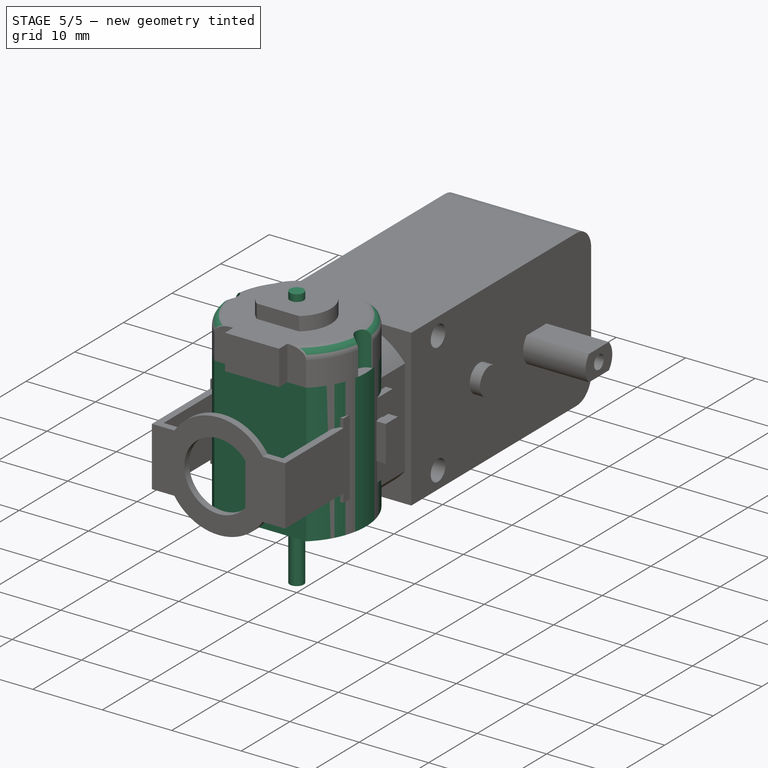
[diagram: stage 5 of 5 — iso view after this stage's code; geometry added in this stage tinted green]
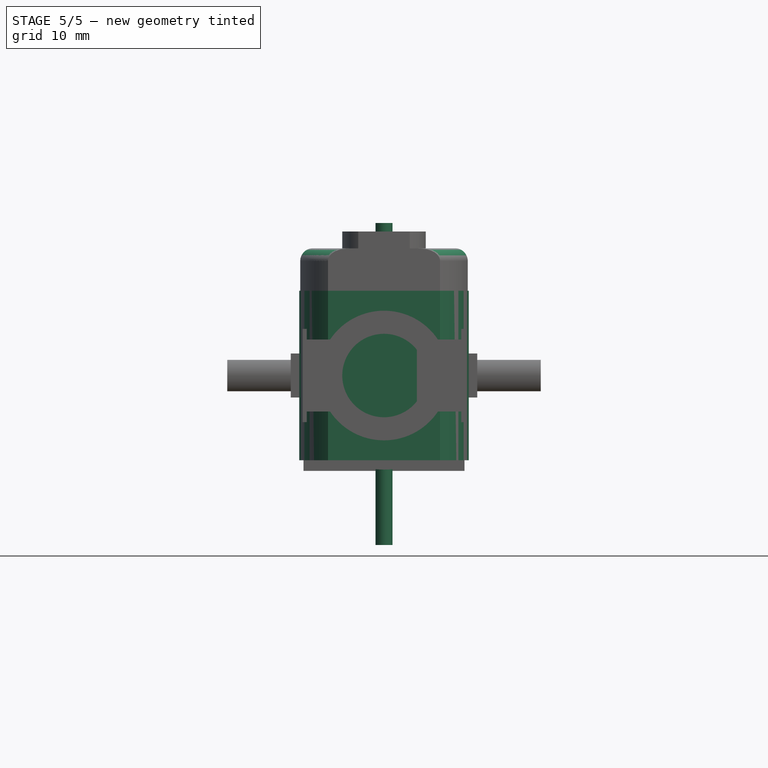
[diagram: stage 5 of 5 — front view after this stage's code; geometry added in this stage tinted green]
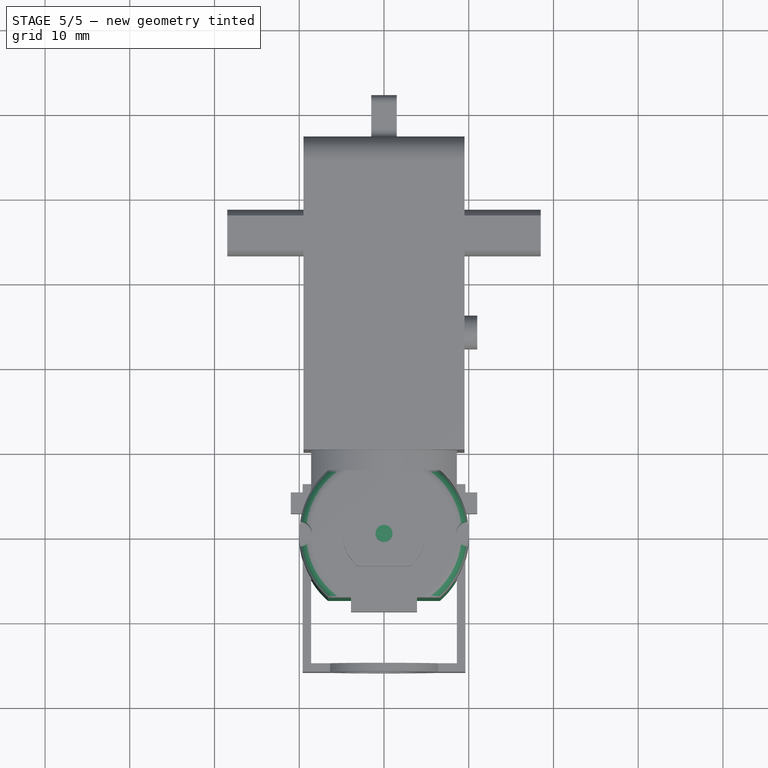
[diagram: stage 5 of 5 — top view after this stage's code; geometry added in this stage tinted green]
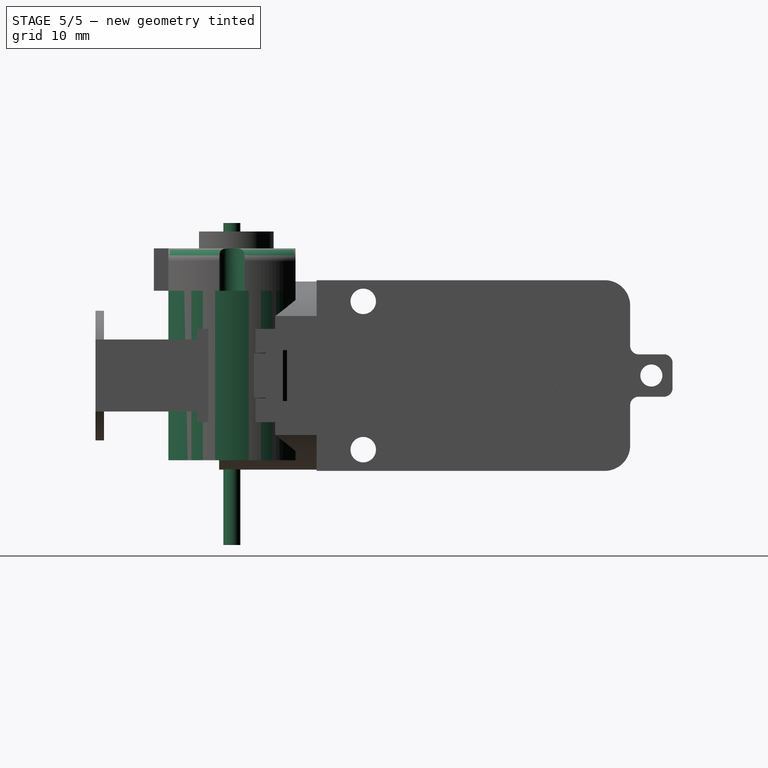
[diagram: stage 5 of 5 — right view after this stage's code; geometry added in this stage tinted green]
FEATURE [Sketcher::SketchObject] Sketch
  FullyConstrained = true
  MapMode = 5
  Support = -> [XY_Plane001]
  sketch-geometry (4):
    g0: ArcOfCircle CenterX=0 CenterY=0 CenterZ=0 NormalX=0 NormalY=0 NormalZ=1 AngleXU=0 Radius=10 StartAngle=2.29353 EndAngle=3.98965
    g1: LineSegment StartX=-6.61438 StartY=7.5 StartZ=0 EndX=6.61438 EndY=7.5 EndZ=0
    g2: LineSegment StartX=6.61438 StartY=-7.5 StartZ=0 EndX=-6.61438 EndY=-7.5 EndZ=0
    g3: ArcOfCircle CenterX=0 CenterY=0 CenterZ=0 NormalX=0 NormalY=0 NormalZ=1 AngleXU=0 Radius=10 StartAngle=5.43512 EndAngle=7.13125
  constraints (12):
    c: Coincident(g0,g-1)
    c: Diameter(g0) = 20
    c: Horizontal(g1)
    c: Horizontal(g2)
    c: Equal(g2,g1)
    c: DistanceY(g2,g1) = 15
    c: Coincident(g3,g1)
    c: Coincident(g0,g1)
    c: Equal(g0,g3)
    c: Coincident(g0,g2)
    c: Coincident(g3,g2)
    c: Coincident(g0,g3)
FEATURE [PartDesign::Pad] Pad
  Direction = (0,0,1)
  Length = 20
  Length2 = 10
  Midplane = true
  Profile = -> Sketch
  ReferenceAxis = -> Sketch [N_Axis]
  Type = 0
FEATURE [Sketcher::SketchObject] Sketch002
  FullyConstrained = true
  MapMode = 5
  Support = -> [XY_Plane003]
  sketch-geometry (1):
    g0: Circle CenterX=0 CenterY=0 CenterZ=0 NormalX=0 NormalY=0 NormalZ=1 AngleXU=0 Radius=1
  constraints (2):
    c: Coincident(g0,g-1)
    c: Diameter(g0) = 2
FEATURE [PartDesign::Pad] Pad002
  Direction = (0,0,1)
  Length = 18
  Length2 = 20
  Profile = -> Sketch002
  ReferenceAxis = -> Sketch002 [N_Axis]
  Type = 4
FEATURE [Sketcher::SketchObject] Sketch004
  ExternalGeometry = -> [Pad003]
  FullyConstrained = true
  MapMode = 5
  Placement = pos=(0,0,15) rot=(0,0,1;0rad)
  Support = -> [Pad003]
  sketch-geometry (2):
    g0: Circle CenterX=-10 CenterY=0 CenterZ=0 NormalX=0 NormalY=0 NormalZ=1 AngleXU=0 Radius=1.5
    g1: Circle CenterX=10 CenterY=0 CenterZ=0 NormalX=0 NormalY=0 NormalZ=1 AngleXU=0 Radius=1.5
  constraints (6):
    c: PointOnObject(g0,g-1)
    c: PointOnObject(g1,g-4)
    c: Equal(g1,g0)
    c: PointOnObject(g1,g-1)
    c: PointOnObject(g0,g-3)
    c: Diameter(g1) = 3
FEATURE [PartDesign::Fillet] Fillet
  Base = -> Pad003 [Edge16,Edge4]
  BaseFeature = -> Pad003
  Radius = 1.5
  SupportTransform = false
  UseAllEdges = false
FEATURE [PartDesign::Pocket] Pocket
  BaseFeature = -> Fillet
  Direction = (0,0,-1)
  Length = 5
  Length2 = 5
  Profile = -> Sketch004
  ReferenceAxis = -> Sketch004 [N_Axis]
  Type = 2
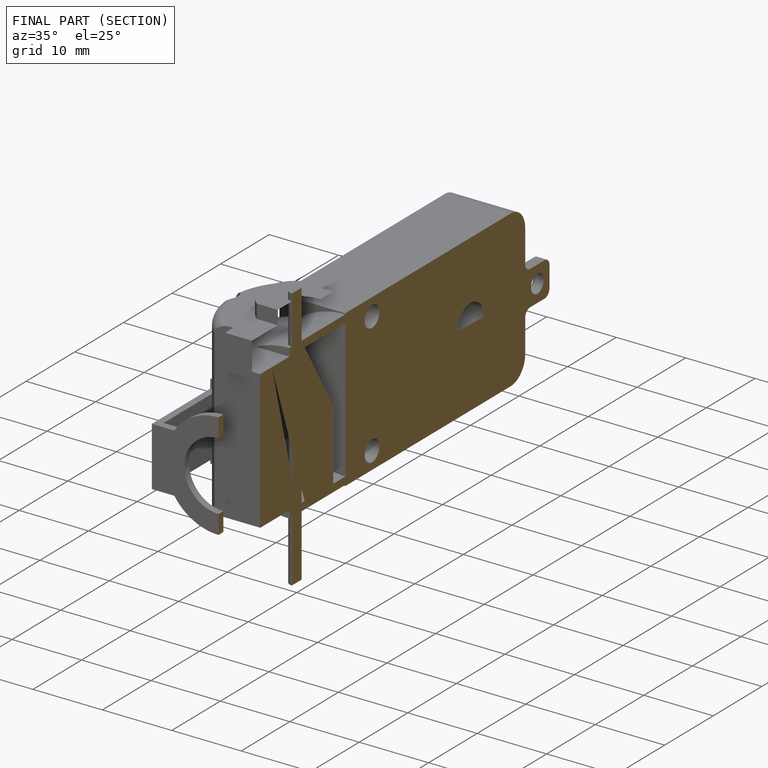
[diagram: finished part — half-section view (interior)]
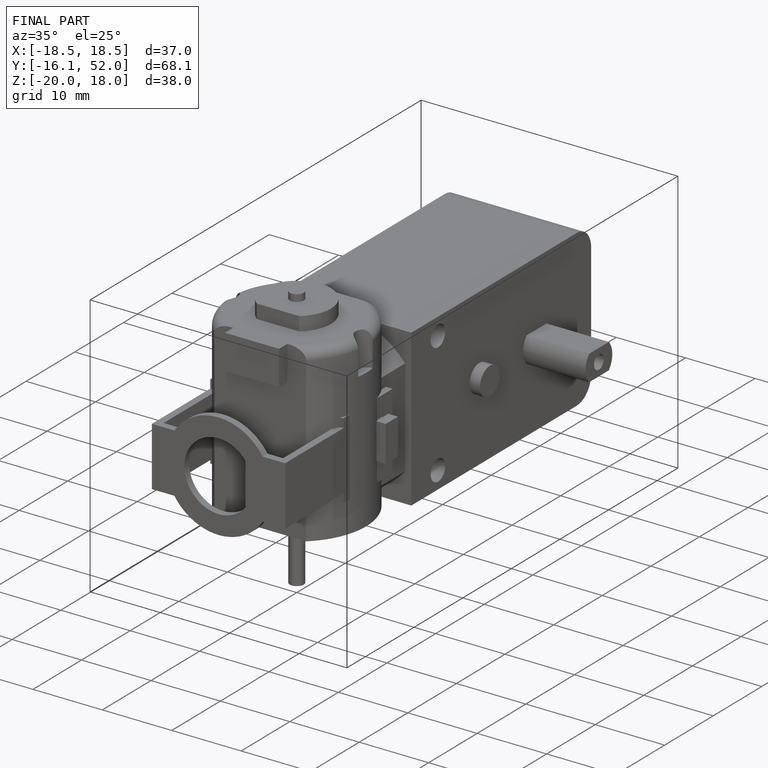
[diagram: finished part — iso view with bounding-box wireframe]
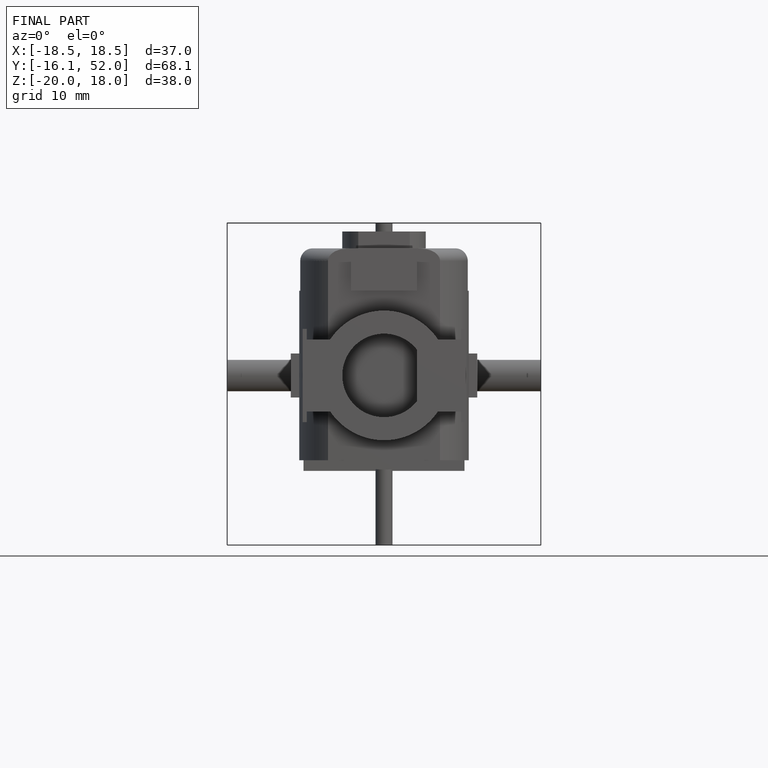
[diagram: finished part — front view with bounding-box wireframe]
